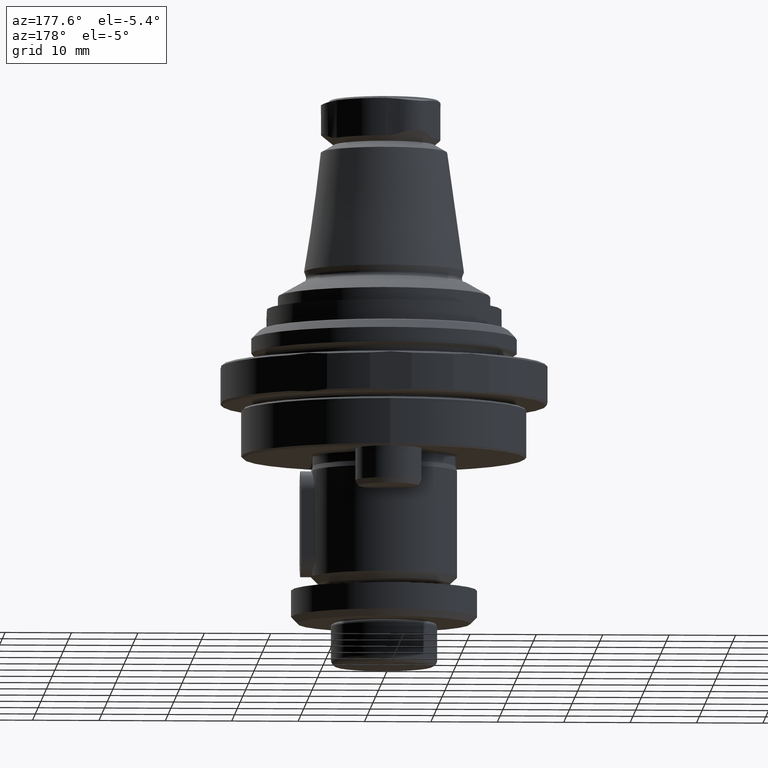
[diagram: clean part render]
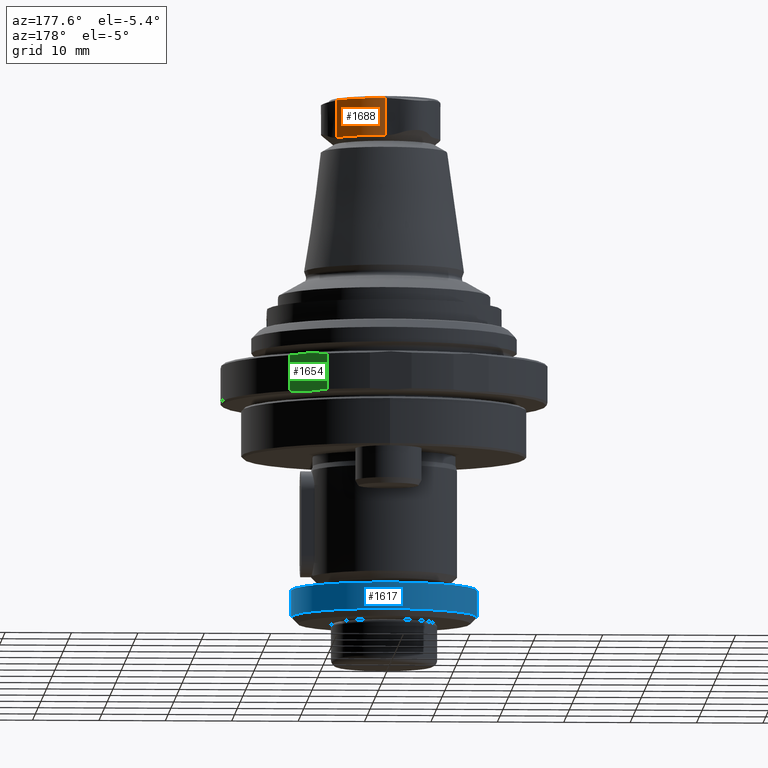
[diagram: same view with three faces highlighted in distinct colors, each labeled with its STEP entity id]
A machine part, auxiliary view with three faces highlighted in distinct colors.
Their STEP definitions:

[orange] entity #1688 — the highlighted cylindrical surface (partial cylindrical patch) has radius 8.5 mm, axis along (0, 0, 1).
#65=LINE('',#2533,#136);
#69=LINE('',#2545,#140);
#136=VECTOR('',#1939,1000.);
#140=VECTOR('',#1947,1000.);
#252=CYLINDRICAL_SURFACE('',#1904,8.5);
#759=ORIENTED_EDGE('',*,*,#828,.F.);
#760=ORIENTED_EDGE('',*,*,#803,.T.);
#761=ORIENTED_EDGE('',*,*,#783,.F.);
#762=ORIENTED_EDGE('',*,*,#798,.F.);
#783=EDGE_CURVE('',#1006,#1007,#1149,.F.);
#798=EDGE_CURVE('',#1016,#1006,#65,.T.);
#803=EDGE_CURVE('',#1020,#1007,#69,.T.);
#828=EDGE_CURVE('',#1020,#1016,#1153,.F.);
#1006=VERTEX_POINT('',#2479);
#1007=VERTEX_POINT('',#2481);
#1016=VERTEX_POINT('',#2531);
#1020=VERTEX_POINT('',#2546);
#1149=CIRCLE('',#1710,8.5);
#1153=CIRCLE('',#1727,8.5);
#1395=EDGE_LOOP('',(#759,#760,#761,#762));
#1555=FACE_BOUND('',#1395,.T.);
#1688=ADVANCED_FACE('',(#1555),#252,.T.);
#1710=AXIS2_PLACEMENT_3D('',#2480,#1923,#1924);
#1727=AXIS2_PLACEMENT_3D('',#2619,#1981,#1982);
#1904=AXIS2_PLACEMENT_3D('',#3080,#2382,#2383);
#1923=DIRECTION('',(0.,0.,-1.));
#1924=DIRECTION('',(-1.,0.,0.));
#1939=DIRECTION('',(0.,0.,1.));
#1947=DIRECTION('',(0.,0.,1.));
#1981=DIRECTION('',(0.,0.,1.));
#1982=DIRECTION('',(1.,0.,0.));
#2382=DIRECTION('',(0.,0.,1.));
#2383=DIRECTION('',(1.,0.,0.));
#2479=CARTESIAN_POINT('',(7.31395348837203,4.33082952445955,38.7));
#2480=CARTESIAN_POINT('',(0.,0.,38.7));
#2481=CARTESIAN_POINT('',(0.0936316434552864,8.49948428525778,38.7));
#2531=CARTESIAN_POINT('',(7.31395348837163,4.33082952445931,33.0490544971308));
#2533=CARTESIAN_POINT('',(7.31395348837203,4.33082952445955,36.));
#2545=CARTESIAN_POINT('',(0.0936316434552864,8.49948428525778,36.));
#2546=CARTESIAN_POINT('',(0.0936316434552864,8.49948428525778,33.0490544971312));
#2619=CARTESIAN_POINT('',(0.,0.,33.0490544971312));
#3080=CARTESIAN_POINT('',(0.,0.,33.));

[blue] entity #1617 — the highlighted cylindrical surface (bore or boss wall) has radius 14 mm, axis along (0, 0, -1).
#223=CYLINDRICAL_SURFACE('',#1780,14.);
#499=ORIENTED_EDGE('',*,*,#882,.F.);
#500=ORIENTED_EDGE('',*,*,#884,.T.);
#882=EDGE_CURVE('',#1068,#1068,#1181,.T.);
#884=EDGE_CURVE('',#1070,#1070,#1183,.T.);
#1068=VERTEX_POINT('',#2779);
#1070=VERTEX_POINT('',#2785);
#1181=CIRCLE('',#1777,14.);
#1183=CIRCLE('',#1781,14.);
#1292=EDGE_LOOP('',(#499));
#1293=EDGE_LOOP('',(#500));
#1452=FACE_BOUND('',#1292,.T.);
#1453=FACE_BOUND('',#1293,.T.);
#1617=ADVANCED_FACE('',(#1452,#1453),#223,.T.);
#1777=AXIS2_PLACEMENT_3D('',#2778,#2094,#2095);
#1780=AXIS2_PLACEMENT_3D('',#2783,#2100,#2101);
#1781=AXIS2_PLACEMENT_3D('',#2784,#2102,#2103);
#2094=DIRECTION('',(0.,1.05145690546658E-32,-1.));
#2095=DIRECTION('',(-1.,1.44497044538006E-16,-1.23259516440783E-32));
#2100=DIRECTION('',(0.,1.05145690546658E-32,-1.));
#2101=DIRECTION('',(-1.,1.44497044538006E-16,-1.23259516440783E-32));
#2102=DIRECTION('',(0.,1.05145690546658E-32,-1.));
#2103=DIRECTION('',(-1.,1.44497044538006E-16,-1.23259516440783E-32));
#2778=CARTESIAN_POINT('',(1.88567703456428E-24,-8.55713545927034E-8,-39.));
#2779=CARTESIAN_POINT('',(-14.,-8.55713525697448E-8,-39.));
#2783=CARTESIAN_POINT('',(1.88567703456428E-24,-8.55713545927034E-8,-100.));
#2784=CARTESIAN_POINT('',(1.88567703456428E-24,-8.55713545927034E-8,-35.));
#2785=CARTESIAN_POINT('',(-14.,-8.55713525697448E-8,-35.));

[green] entity #1654 — the highlighted planar face has unit normal (-0.5, -0.866, 0).
#52=PLANE('',#1854);
#128=LINE('',#3004,#199);
#129=LINE('',#3011,#200);
#199=VECTOR('',#2278,1000.);
#200=VECTOR('',#2281,1000.);
#306=B_SPLINE_CURVE_WITH_KNOTS('',3,(#2933,#2934,#2935,#2936),
 .UNSPECIFIED.,.F.,.F.,(4,4),(0.0111130187680983,0.0173638873401942),
 .UNSPECIFIED.);
#313=B_SPLINE_CURVE_WITH_KNOTS('',3,(#3006,#3007,#3008,#3009),
 .UNSPECIFIED.,.F.,.F.,(4,4),(0.0111130187680911,0.0173638873401871),
 .UNSPECIFIED.);
#643=ORIENTED_EDGE('',*,*,#965,.F.);
#644=ORIENTED_EDGE('',*,*,#966,.F.);
#645=ORIENTED_EDGE('',*,*,#967,.F.);
#646=ORIENTED_EDGE('',*,*,#940,.F.);
#940=EDGE_CURVE('',#1117,#1103,#306,.F.);
#965=EDGE_CURVE('',#1130,#1117,#128,.F.);
#966=EDGE_CURVE('',#1131,#1130,#313,.T.);
#967=EDGE_CURVE('',#1103,#1131,#129,.T.);
#1103=VERTEX_POINT('',#2883);
#1117=VERTEX_POINT('',#2932);
#1130=VERTEX_POINT('',#3003);
#1131=VERTEX_POINT('',#3010);
#1347=EDGE_LOOP('',(#643,#644,#645,#646));
#1507=FACE_BOUND('',#1347,.T.);
#1654=ADVANCED_FACE('',(#1507),#52,.F.);
#1854=AXIS2_PLACEMENT_3D('',#3005,#2279,#2280);
#2278=DIRECTION('',(-2.60563148754756E-18,-2.60563148754756E-18,-1.));
#2279=DIRECTION('',(-0.499999999999999,-0.866025403784439,3.55935880489061E-18));
#2280=DIRECTION('',(-2.60563148754756E-18,-2.60563148754756E-18,-1.));
#2281=DIRECTION('',(-2.60563148754756E-18,-2.60563148754756E-18,-1.));
#2883=CARTESIAN_POINT('',(9.53338445855882,22.7860611068545,-1.29999999999988));
#2932=CARTESIAN_POINT('',(14.9666155414412,19.649183678583,-1.29999999999988));
#2933=CARTESIAN_POINT('',(9.53338445855882,22.7860611068545,-1.29999999999988));
#2934=CARTESIAN_POINT('',(11.3440279441622,21.740685603035,-1.03447653263174));
#2935=CARTESIAN_POINT('',(13.1551047641245,20.6950599135066,-1.03434934784646));
#2936=CARTESIAN_POINT('',(14.9666155414412,19.649183678583,-1.29999999999988));
#3003=CARTESIAN_POINT('',(14.9666155414412,19.649183678583,-6.70000000000001));
#3004=CARTESIAN_POINT('',(14.9666155414412,19.649183678583,-1.00000000000001));
#3005=CARTESIAN_POINT('',(12.25,21.2176223927188,-4.00000000000001));
#3006=CARTESIAN_POINT('',(9.53338445855882,22.7860611068545,-6.70000000000001));
#3007=CARTESIAN_POINT('',(11.3440279441622,21.740685603035,-6.9655234673684));
#3008=CARTESIAN_POINT('',(13.1551047641245,20.6950599135066,-6.96565065215367));
#3009=CARTESIAN_POINT('',(14.9666155414412,19.649183678583,-6.70000000000001));
#3010=CARTESIAN_POINT('',(9.53338445855882,22.7860611068545,-6.70000000000001));
#3011=CARTESIAN_POINT('',(9.53338445855882,22.7860611068545,-1.00000000000001));